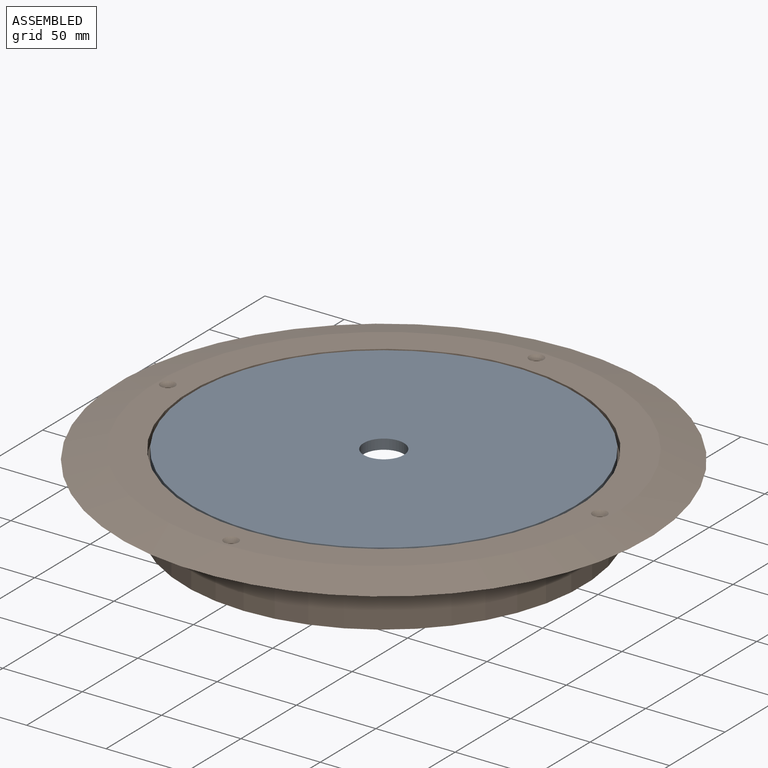
[diagram: assembled view]
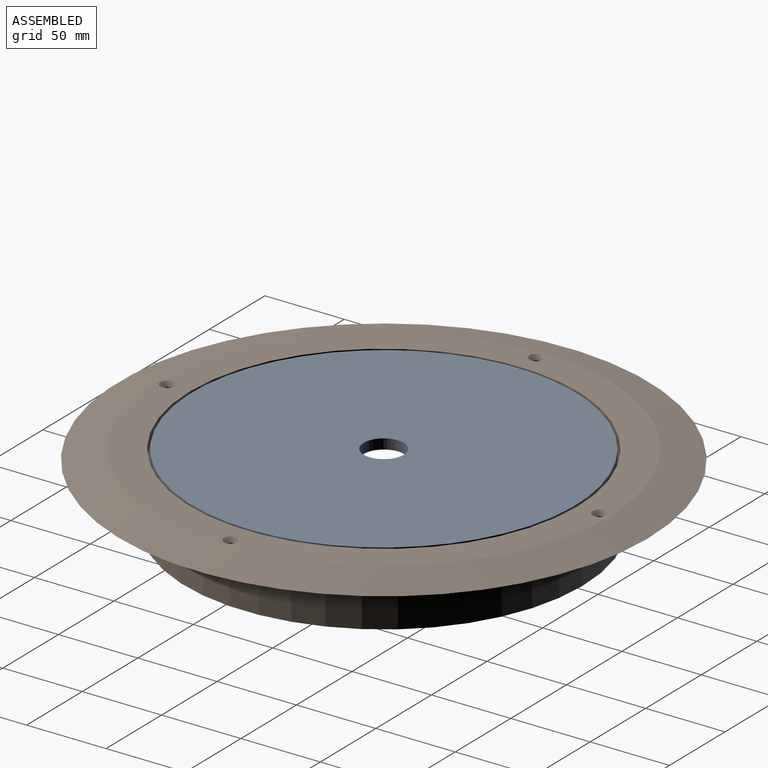
[diagram: assembled view, second angle]
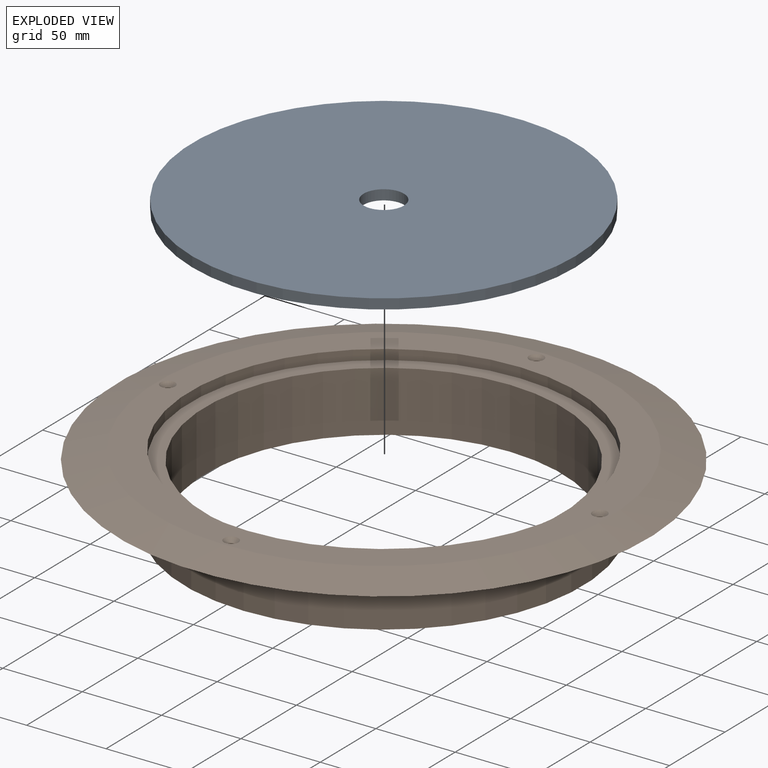
[diagram: exploded view]
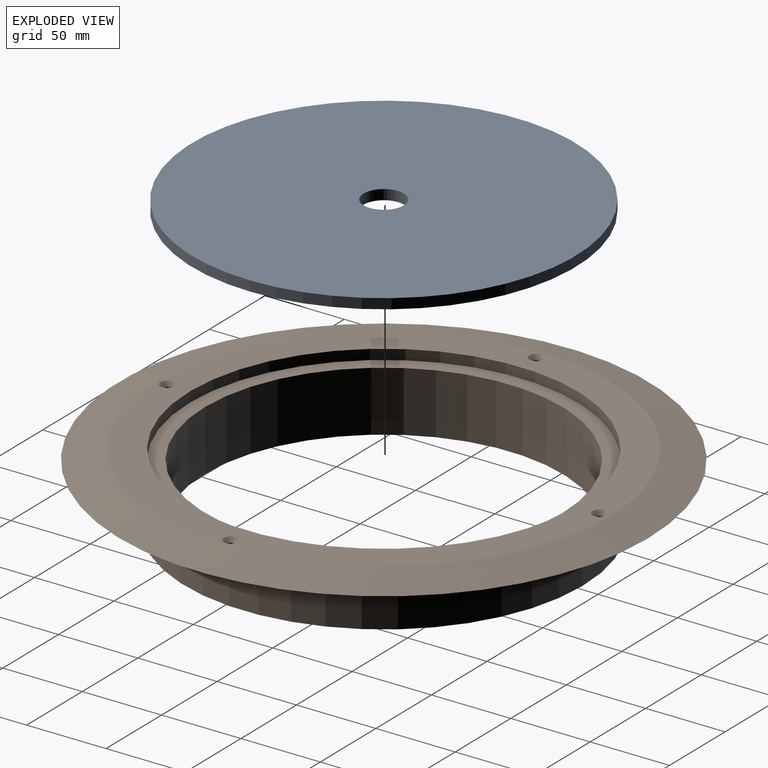
[diagram: exploded view, second angle]
ASSEMBLY  parts=2 mates=2
PART A: 4 faces, bbox 241.3x241.3x6.4 mm
  f0: cylinder r=12.7mm len=25.4mm, axis (0,0,-1), area 506.7mm2, adj f2,f3
  f1: cylinder r=120.65mm len=241.3mm, axis (0,0,-1), area 4813.7mm2, adj f2,f3
  f2: plane 241.3x241.3mm, normal (0,0,1), area 45223.6mm2, adj f0,f1
  f3: plane 241.3x241.3mm, normal (0,0,-1), area 45223.6mm2, adj f0,f1
PART B: 16 faces, bbox 333.4x333.4x44.5 mm
  f0: plane 333.38x333.38mm, normal (0,0,-1), area 37812.9mm2, adj f1,f7,f9,f11,f13,f15
  f1: cylinder r=125.41mm len=250.83mm, axis (0,0,-1), area 30022.4mm2, adj f0,f2
  f2: plane 250.83x250.83mm, normal (0,0,-1), area 9500.8mm2, adj f1,f3
  f3: cylinder r=112.71mm len=225.43mm, axis (0,0,-1), area 26982.2mm2, adj f2,f4
  f4: plane 244.48x244.48mm, normal (0,0,1), area 7030.6mm2, adj f3,f5
  f5: cylinder r=122.24mm len=244.48mm, axis (0,0,-1), area 4877.1mm2, adj f4,f6
  f6: plane 285.98x285.98mm, normal (0,0,1), area 17029.6mm2, adj f5,f8,f10,f12,f14,f15
  f7: cylinder r=2.25mm len=4.5mm, axis (0,0,1), area 52.1mm2, adj f0,f8
  f8: cone r=2.25mm half-angle=41deg, axis (0,0,1), area 75.3mm2, adj f6,f7
  f9: cylinder r=2.25mm len=4.5mm, axis (0,0,1), area 52.1mm2, adj f0,f10
  f10: cone r=2.25mm half-angle=41deg, axis (0,0,1), area 75.3mm2, adj f6,f9
  f11: cylinder r=2.25mm len=4.5mm, axis (0,0,1), area 52.1mm2, adj f0,f12
  f12: cone r=2.25mm half-angle=41deg, axis (0,0,1), area 75.3mm2, adj f6,f11
  f13: cylinder r=2.25mm len=4.5mm, axis (0,0,1), area 52.1mm2, adj f0,f14
  f14: cone r=2.25mm half-angle=41deg, axis (0,0,1), area 75.3mm2, adj f6,f13
  f15: cone r=166.69mm half-angle=75deg, axis (0,0,-1), area 23869.1mm2, adj f0,f6
PLACE A rot(axis=(0,0,1),95.7deg) t=(0,0,0)mm
PLACE B rot(axis=(0,0,-1),90.2deg) t=(0,0,0)mm
MATE cylindrical B.f1 <-> A.f1  axis (0,0,-1) through (0,0,-19.05)mm
MATE planar B.f1 <-> A.f1  axis (0,0,1) through (0,0,0)mm
